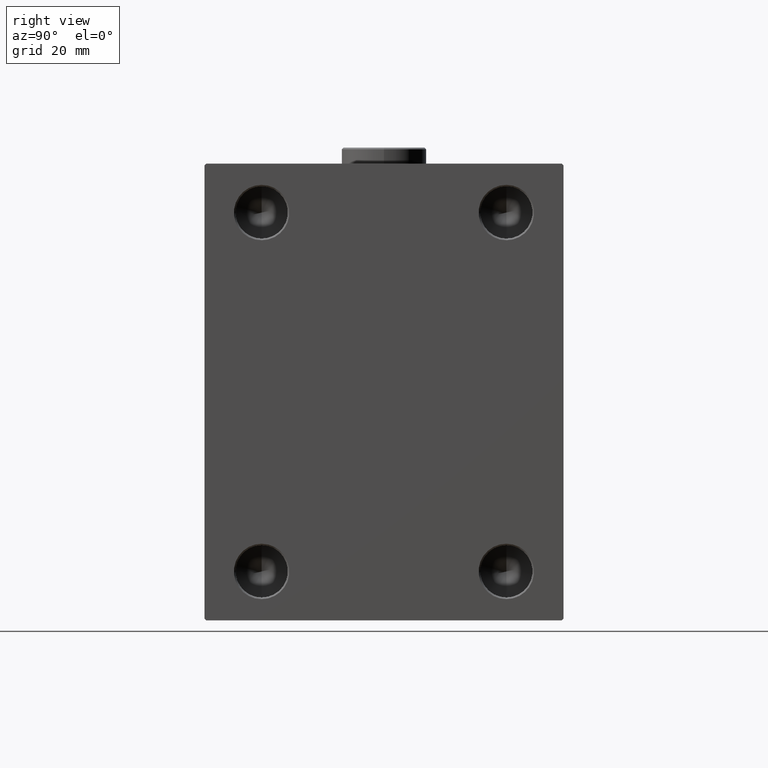
[diagram: clean part render]
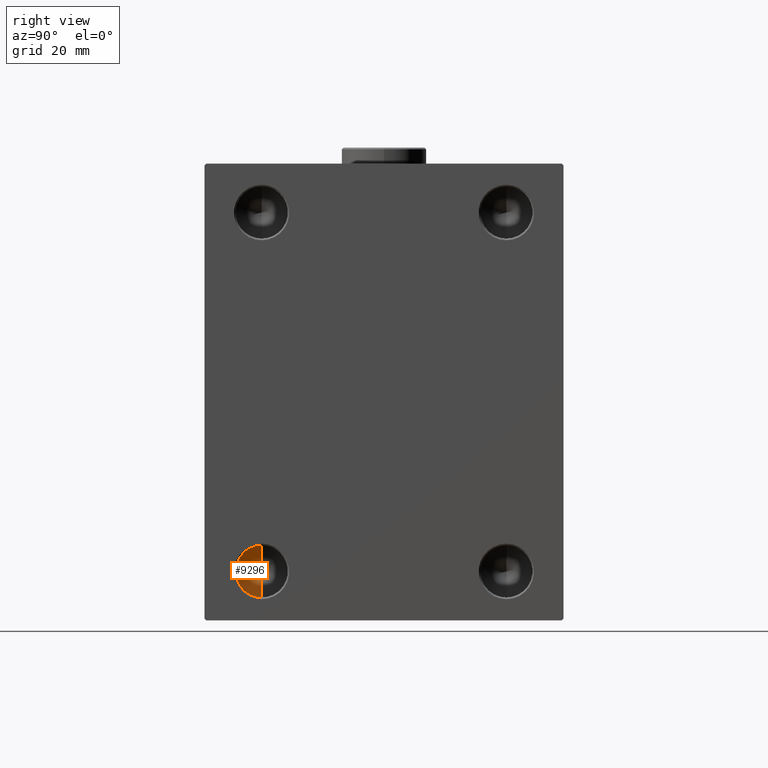
[diagram: same view with one face highlighted and labeled with its STEP entity id]
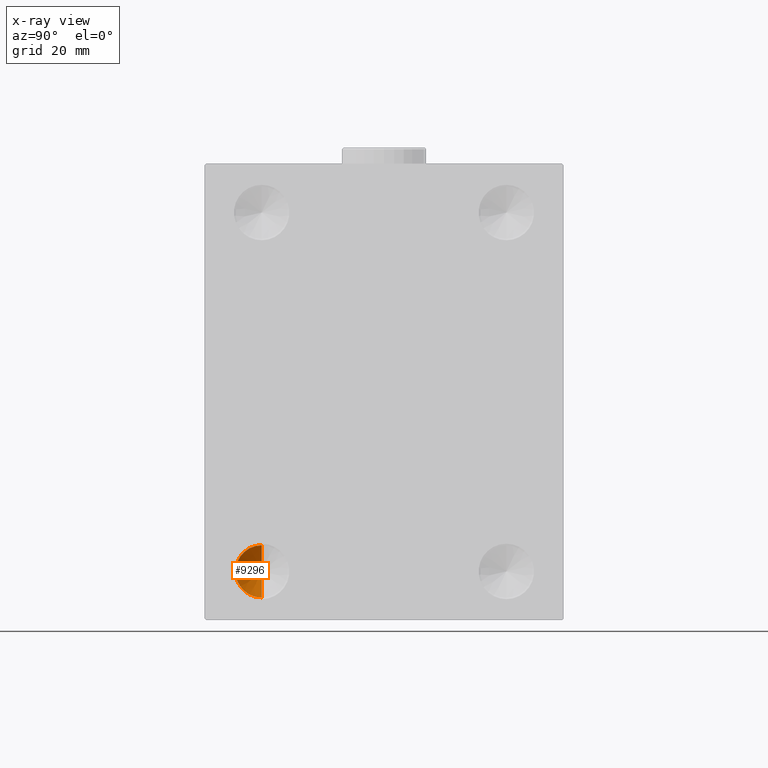
[diagram: x-ray of the same camera — body ghosted, the highlighted face saturated]
A machine part, right view. The second image highlights one B-rep face of the part: STEP entity #9296.
The next image is the same camera in x-ray: the body ghosted, the highlighted face saturated — about 0% of this face is hidden behind the body in this view.
In plain terms, the highlighted conical surface has half-angle 59 deg.
Its self-contained STEP definition (entity closure, byte-faithful):
#1504 = ORIENTED_EDGE ( 'NONE', *, *, #8403, .T. ) ;
#2810 = ORIENTED_EDGE ( 'NONE', *, *, #27776, .F. ) ;
#2930 = FACE_OUTER_BOUND ( 'NONE', #35749, .T. ) ;
#4821 = CARTESIAN_POINT ( 'NONE',  ( 88.00000000000000000, -37.49999999999999289, -62.99999999999998579 ) ) ;
#7158 = EDGE_CURVE ( 'NONE', #15390, #19764, #26432, .T. ) ;
#7230 = DIRECTION ( 'NONE',  ( 0.5150380749100550437, 0.000000000000000000, 0.8571673007021117785 ) ) ;
#7605 = VECTOR ( 'NONE', #7230, 1000.000000000000000 ) ;
#8403 = EDGE_CURVE ( 'NONE', #15390, #43652, #41738, .T. ) ;
#9296 = ADVANCED_FACE ( 'NONE', ( #2930 ), #26716, .F. ) ;
#10222 = CIRCLE ( 'NONE', #38885, 7.999999999999992895 ) ;
#11196 = ORIENTED_EDGE ( 'NONE', *, *, #7158, .F. ) ;
#12596 = CARTESIAN_POINT ( 'NONE',  ( 83.19311504777951427, -37.50000000000000000, -54.99999999999999289 ) ) ;
#14991 = AXIS2_PLACEMENT_3D ( 'NONE', #16740, #35145, #41359 ) ;
#15390 = VERTEX_POINT ( 'NONE', #12596 ) ;
#16740 = CARTESIAN_POINT ( 'NONE',  ( 88.00000000000000000, -37.49999999999999289, -54.99999999999999289 ) ) ;
#18013 = CARTESIAN_POINT ( 'NONE',  ( 88.00000000000000000, -37.49999999999999289, -54.99999999999999289 ) ) ;
#19764 = VERTEX_POINT ( 'NONE', #28233 ) ;
#21260 = CARTESIAN_POINT ( 'NONE',  ( 88.00000000000000000, -37.49999999999999289, -47.00000000000000000 ) ) ;
#21534 = VECTOR ( 'NONE', #43453, 1000.000000000000000 ) ;
#26432 = LINE ( 'NONE', #4821, #21534 ) ;
#26716 = CONICAL_SURFACE ( 'NONE', #14991, 7.999999999999992895, 1.029744258676653423 ) ;
#27776 = EDGE_CURVE ( 'NONE', #19764, #43652, #10222, .T. ) ;
#28233 = CARTESIAN_POINT ( 'NONE',  ( 88.00000000000000000, -37.49999999999999289, -62.99999999999998579 ) ) ;
#28371 = DIRECTION ( 'NONE',  ( -1.000000000000000000, 0.000000000000000000, 0.000000000000000000 ) ) ;
#32030 = DIRECTION ( 'NONE',  ( 0.000000000000000000, 0.000000000000000000, 1.000000000000000000 ) ) ;
#33006 = CARTESIAN_POINT ( 'NONE',  ( 88.00000000000000000, -37.49999999999999289, -47.00000000000000000 ) ) ;
#35145 = DIRECTION ( 'NONE',  ( 1.000000000000000000, -0.000000000000000000, -0.000000000000000000 ) ) ;
#35749 = EDGE_LOOP ( 'NONE', ( #11196, #1504, #2810 ) ) ;
#38885 = AXIS2_PLACEMENT_3D ( 'NONE', #18013, #28371, #32030 ) ;
#41359 = DIRECTION ( 'NONE',  ( 0.000000000000000000, 0.000000000000000000, 1.000000000000000000 ) ) ;
#41738 = LINE ( 'NONE', #21260, #7605 ) ;
#43453 = DIRECTION ( 'NONE',  ( 0.5150380749100550437, -1.049727191138617956E-16, -0.8571673007021117785 ) ) ;
#43652 = VERTEX_POINT ( 'NONE', #33006 ) ;